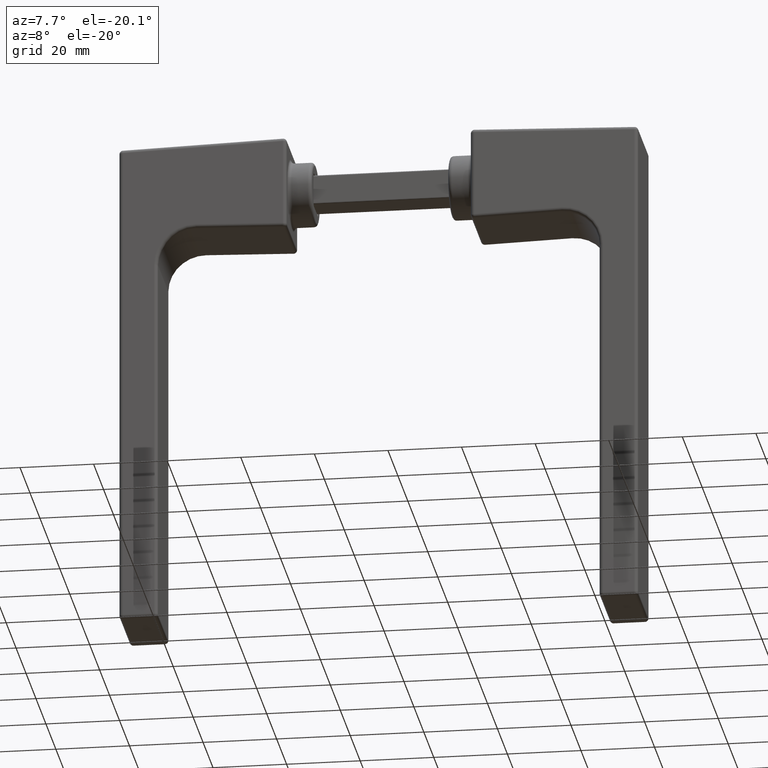
[diagram: clean part render]
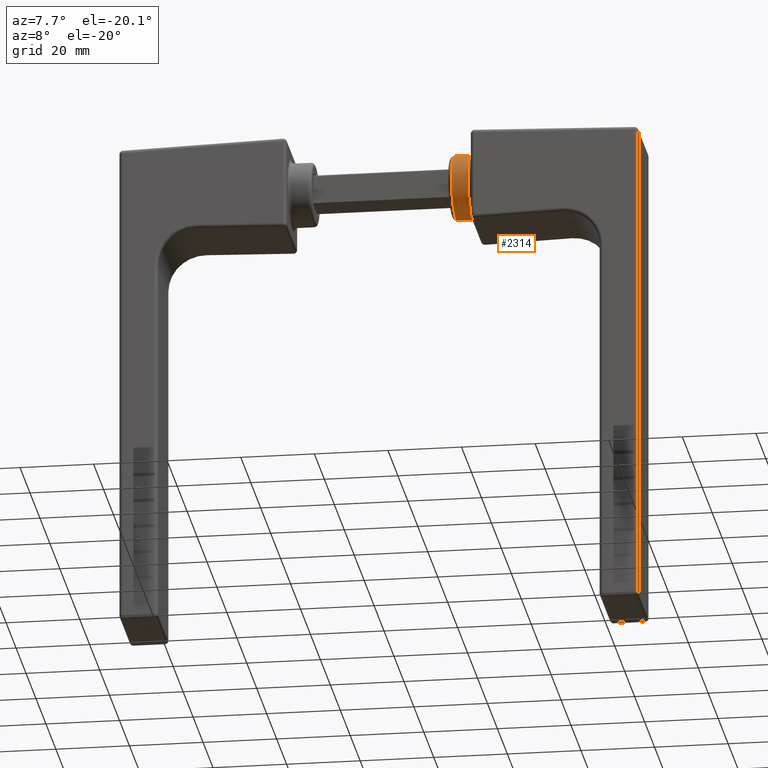
[diagram: same view with one face highlighted and labeled with its STEP entity id]
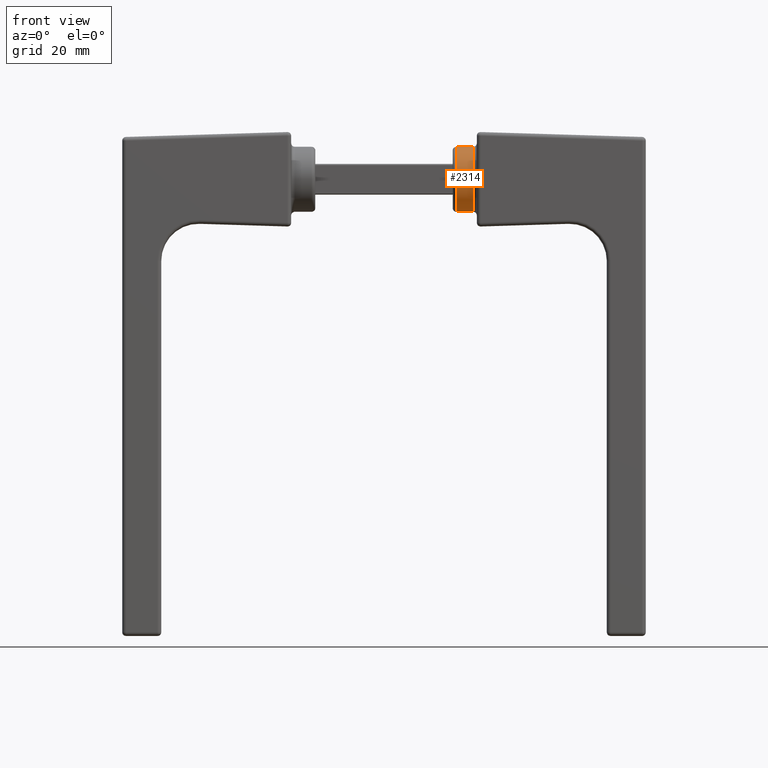
[diagram: same view with one face highlighted and labeled with its STEP entity id]
A machine part, auxiliary view. The second image highlights one B-rep face of the part: STEP entity #2314.
A second angle (front view) of the same face is appended — the face is thin or edge-on in the first view.
In plain terms, the highlighted cylindrical surface (bore or boss wall) has radius 8.75 mm, axis along (1, 0, -0).
Its self-contained STEP definition (entity closure, byte-faithful):
#509 = DIRECTION ( 'NONE',  ( 0.000000000000000000, 0.000000000000000000, 1.000000000000000000 ) ) ;
#539 = DIRECTION ( 'NONE',  ( 0.000000000000000000, 0.000000000000000000, -1.000000000000000000 ) ) ;
#2254 = DIRECTION ( 'NONE',  ( 0.000000000000000000, 0.000000000000000000, 1.000000000000000000 ) ) ;
#2314 = ADVANCED_FACE ( 'NONE', ( #4664, #14677 ), #13541, .T. ) ;
#3672 = DIRECTION ( 'NONE',  ( 1.000000000000000000, -0.000000000000000000, -0.000000000000000000 ) ) ;
#4338 = VERTEX_POINT ( 'NONE', #10325 ) ;
#4664 = FACE_OUTER_BOUND ( 'NONE', #13654, .T. ) ;
#5464 = EDGE_LOOP ( 'NONE', ( #14290 ) ) ;
#6557 = CARTESIAN_POINT ( 'NONE',  ( 5.500000000000000000, 0.000000000000000000, 0.000000000000000000 ) ) ;
#6606 = ORIENTED_EDGE ( 'NONE', *, *, #10748, .T. ) ;
#7152 = CARTESIAN_POINT ( 'NONE',  ( 1.000000000000005995, 0.000000000000000000, 0.000000000000000000 ) ) ;
#7945 = CARTESIAN_POINT ( 'NONE',  ( 1.000000000000005995, 0.000000000000000000, 8.750000000000001776 ) ) ;
#9535 = EDGE_CURVE ( 'NONE', #4338, #4338, #13295, .T. ) ;
#10095 = DIRECTION ( 'NONE',  ( -1.000000000000000000, -0.000000000000000000, -0.000000000000000000 ) ) ;
#10325 = CARTESIAN_POINT ( 'NONE',  ( 5.500000000000000000, 0.000000000000000000, -8.750000000000001776 ) ) ;
#10748 = EDGE_CURVE ( 'NONE', #14720, #14720, #11045, .T. ) ;
#10757 = AXIS2_PLACEMENT_3D ( 'NONE', #6557, #15016, #539 ) ;
#11045 = CIRCLE ( 'NONE', #15523, 8.750000000000001776 ) ;
#13295 = CIRCLE ( 'NONE', #10757, 8.750000000000001776 ) ;
#13541 = CYLINDRICAL_SURFACE ( 'NONE', #15370, 8.750000000000001776 ) ;
#13654 = EDGE_LOOP ( 'NONE', ( #6606 ) ) ;
#13808 = CARTESIAN_POINT ( 'NONE',  ( 6.500000000000000000, 0.000000000000000000, 0.000000000000000000 ) ) ;
#14290 = ORIENTED_EDGE ( 'NONE', *, *, #9535, .T. ) ;
#14677 = FACE_OUTER_BOUND ( 'NONE', #5464, .T. ) ;
#14720 = VERTEX_POINT ( 'NONE', #7945 ) ;
#15016 = DIRECTION ( 'NONE',  ( -1.000000000000000000, -0.000000000000000000, -0.000000000000000000 ) ) ;
#15370 = AXIS2_PLACEMENT_3D ( 'NONE', #13808, #10095, #509 ) ;
#15523 = AXIS2_PLACEMENT_3D ( 'NONE', #7152, #3672, #2254 ) ;